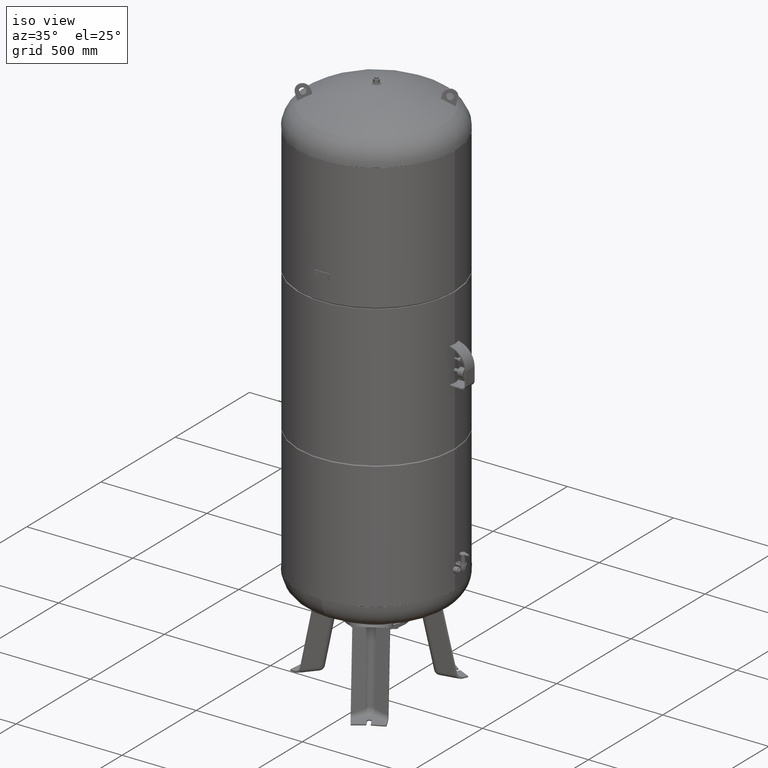
[diagram: clean part render]
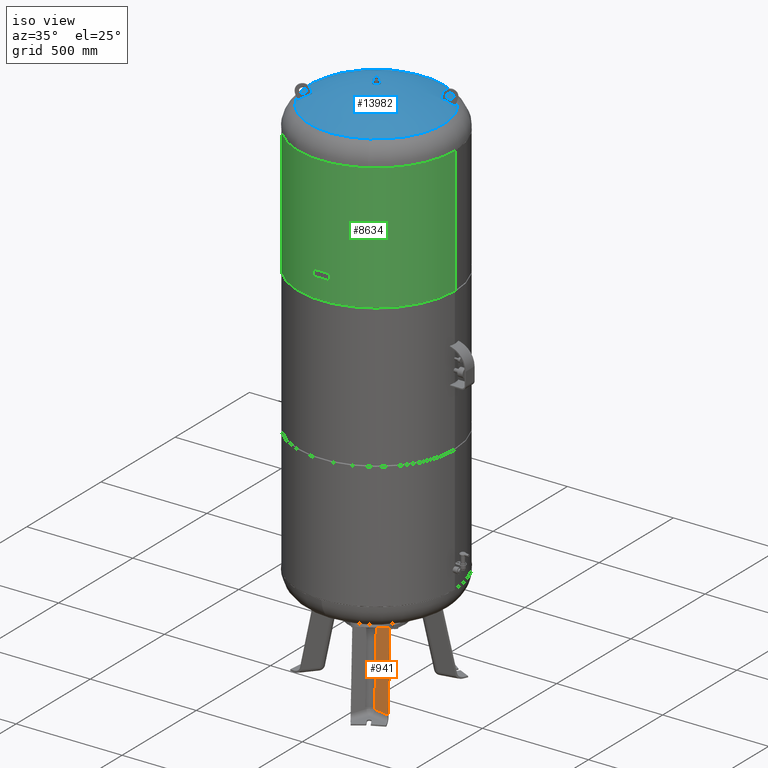
[diagram: same view with three faces highlighted in distinct colors, each labeled with its STEP entity id]
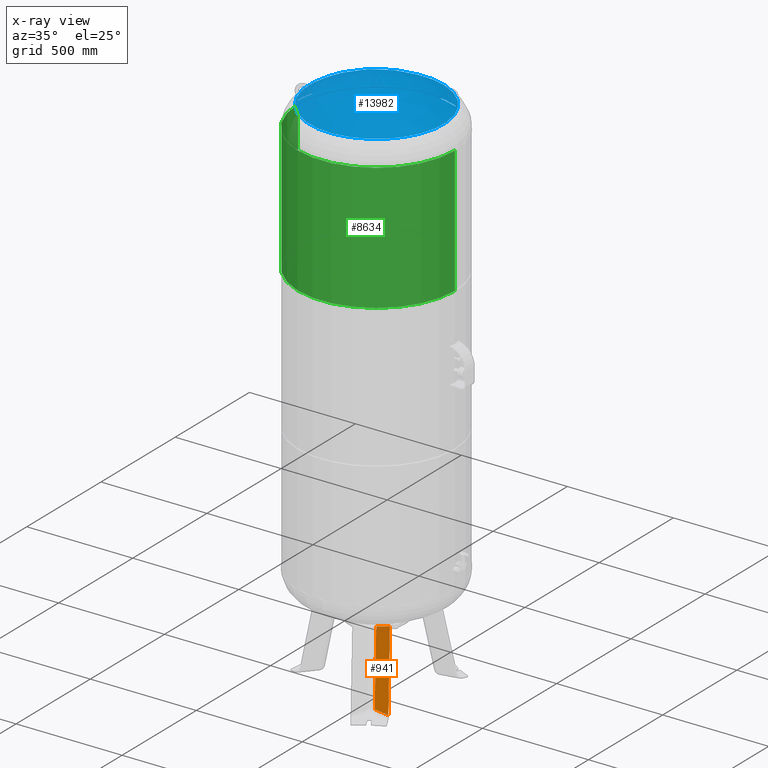
[diagram: x-ray of the same camera — body ghosted, the three highlighted faces saturated]
A machine part, iso view with three faces highlighted in distinct colors.
The next image is the same camera in x-ray (body ghosted, the three faces saturated) — at least one of them is partly hidden behind the body in this view.
Their STEP definitions:

[orange] entity #941 — the highlighted planar face has unit normal (-0.1854, -0.9697, 0.1588).
#242=CARTESIAN_POINT('',(110.332412913938650,-158.828443235501310,348.869175182353330));
#243=VERTEX_POINT('',#242);
#261=CARTESIAN_POINT('',(181.412613696192100,-168.540131715960290,372.562952014676110));
#262=VERTEX_POINT('',#261);
#263=CARTESIAN_POINT('',(181.412613696192100,-168.540131715960290,372.562952014676110));
#264=CARTESIAN_POINT('',(167.154454540864040,-166.704599258965570,367.122797962066330));
#265=CARTESIAN_POINT('',(152.866619821244340,-164.800008526659550,362.069703598062520));
#266=CARTESIAN_POINT('',(131.328084243318190,-161.824675071974980,355.088683497571820));
#267=CARTESIAN_POINT('',(124.047105973480560,-160.800721286569000,352.839681936075920));
#268=CARTESIAN_POINT('',(114.632281824840530,-159.450541506074560,350.091155577606000));
#269=CARTESIAN_POINT('',(112.481491377469150,-159.140308945746140,349.474179354457020));
#270=CARTESIAN_POINT('',(110.332412913938650,-158.828443235501310,348.869175182353330));
#271=B_SPLINE_CURVE_WITH_KNOTS('',3,(#263,#264,#265,#266,#267,#268,#269,#270),.UNSPECIFIED.,.F.,.U.,(4,2,2,4),(536.144034177567730,540.433260676197730,542.629325785795340,543.280185670864850),.UNSPECIFIED.);
#272=EDGE_CURVE('',#262,#243,#271,.T.);
#594=CARTESIAN_POINT('',(144.536932639186010,-218.072409248121570,27.029948423057284));
#595=VERTEX_POINT('',#594);
#604=CARTESIAN_POINT('',(218.135267289667210,-232.145633528611060,27.029948423057281));
#605=VERTEX_POINT('',#604);
#613=CARTESIAN_POINT('',(218.135267289667210,-232.145633528611060,27.029948423057281));
#614=DIRECTION('',(-0.982204642422582,0.187813845079450,4.741265E-017));
#615=VECTOR('',#614,74.931772333057637);
#616=LINE('',#613,#615);
#617=EDGE_CURVE('',#605,#595,#616,.T.);
#861=CARTESIAN_POINT('',(218.135267289667210,-232.145633528611060,27.029948423057281));
#862=DIRECTION('',(-0.103955845408880,0.180056805991956,0.978147600733805));
#863=VECTOR('',#862,353.252416437355920);
#864=LINE('',#861,#863);
#865=EDGE_CURVE('',#605,#262,#864,.T.);
#925=CARTESIAN_POINT('',(228.206754317925000,-249.589960769324450,-67.735293817669458));
#926=DIRECTION('',(-0.185430570007245,-0.969740897595359,0.158802063077709));
#927=DIRECTION('',(-0.103955845408880,0.180056805991956,0.978147600733806));
#928=AXIS2_PLACEMENT_3D('',#925,#926,#927);
#929=PLANE('',#928);
#930=ORIENTED_EDGE('',*,*,#865,.T.);
#931=ORIENTED_EDGE('',*,*,#272,.T.);
#932=CARTESIAN_POINT('',(144.536932639186010,-218.072409248121570,27.029948423057284));
#933=DIRECTION('',(-0.103955845408880,0.180056805991956,0.978147600733806));
#934=VECTOR('',#933,329.029306535999750);
#935=LINE('',#932,#934);
#936=EDGE_CURVE('',#595,#243,#935,.T.);
#937=ORIENTED_EDGE('',*,*,#936,.F.);
#938=ORIENTED_EDGE('',*,*,#617,.F.);
#939=EDGE_LOOP('',(#930,#931,#937,#938));
#940=FACE_OUTER_BOUND('',#939,.T.);
#941=ADVANCED_FACE('',(#940),#929,.T.);

[blue] entity #13982 — the highlighted spherical surface has radius 594 mm.
#13351=CARTESIAN_POINT('',(157.965517241379270,-273.604301705966460,2484.014494274920300));
#13352=VERTEX_POINT('',#13351);
#13368=CARTESIAN_POINT('',(-157.965517241379250,273.604301705966410,2484.014494274920300));
#13369=VERTEX_POINT('',#13368);
#13377=CARTESIAN_POINT('',(273.604301705966460,157.965517241379250,2484.014494274920300));
#13378=VERTEX_POINT('',#13377);
#13379=CARTESIAN_POINT('',(-1.292814E-015,-2.004580E-014,2484.014494274920300));
#13380=DIRECTION('',(-1.060575E-016,-6.123234E-017,-1.0));
#13381=DIRECTION('',(0.866025403784439,0.500000000000000,-1.224647E-016));
#13382=AXIS2_PLACEMENT_3D('',#13379,#13380,#13381);
#13383=CIRCLE('',#13382,315.931034482758610);
#13384=EDGE_CURVE('',#13369,#13378,#13383,.T.);
#13386=CARTESIAN_POINT('',(-1.292814E-015,-2.004580E-014,2484.014494274920300));
#13387=DIRECTION('',(-1.060575E-016,-6.123234E-017,-1.0));
#13388=DIRECTION('',(0.866025403784439,0.500000000000000,-1.224647E-016));
#13389=AXIS2_PLACEMENT_3D('',#13386,#13387,#13388);
#13390=CIRCLE('',#13389,315.931034482758610);
#13391=EDGE_CURVE('',#13378,#13352,#13390,.T.);
#13527=CARTESIAN_POINT('',(215.032738994050080,127.613311357928240,2519.805868495306200));
#13528=VERTEX_POINT('',#13527);
#13529=CARTESIAN_POINT('',(264.376557238610250,156.101978104269390,2489.500942393024600));
#13530=VERTEX_POINT('',#13529);
#13531=CARTESIAN_POINT('',(-1.499999999995883,2.598076211345996,1981.0));
#13532=DIRECTION('',(-0.500000000000006,0.866025403784435,0.0));
#13533=DIRECTION('',(0.0,0.0,1.0));
#13534=AXIS2_PLACEMENT_3D('',#13531,#13532,#13533);
#13535=CIRCLE('',#13534,593.992424194113820);
#13536=EDGE_CURVE('',#13528,#13530,#13535,.T.);
#13579=CARTESIAN_POINT('',(218.032738994050020,122.417158935221560,2519.805868495306200));
#13580=VERTEX_POINT('',#13579);
#13581=CARTESIAN_POINT('',(81.041876268855148,46.789549079456478,1955.075117590819000));
#13582=DIRECTION('',(-0.834590199910595,-0.481850876581413,0.266981143436978));
#13583=DIRECTION('',(-0.231212452547840,-0.133490571718489,-0.963701753162815));
#13584=AXIS2_PLACEMENT_3D('',#13581,#13582,#13583);
#13585=CIRCLE('',#13584,586.009260046148940);
#13586=EDGE_CURVE('',#13580,#13528,#13585,.T.);
#13650=CARTESIAN_POINT('',(267.376557238610190,150.905825681562790,2489.500942393024600));
#13651=VERTEX_POINT('',#13650);
#13652=CARTESIAN_POINT('',(133.621058863222740,77.146154304085570,1938.255305554289400));
#13653=DIRECTION('',(0.834590199910595,0.481850876581413,-0.266981143436978));
#13654=DIRECTION('',(0.231212452547840,0.133490571718489,0.963701753162815));
#13655=AXIS2_PLACEMENT_3D('',#13652,#13653,#13654);
#13656=CIRCLE('',#13655,572.016411129177530);
#13657=EDGE_CURVE('',#13530,#13651,#13656,.T.);
#13721=CARTESIAN_POINT('',(1.500000000004162,-2.598076211360627,1981.0));
#13722=DIRECTION('',(0.500000000000006,-0.866025403784435,0.0));
#13723=DIRECTION('',(0.0,0.0,-1.0));
#13724=AXIS2_PLACEMENT_3D('',#13721,#13722,#13723);
#13725=CIRCLE('',#13724,593.992424194113710);
#13726=EDGE_CURVE('',#13651,#13580,#13725,.T.);
#13743=CARTESIAN_POINT('',(-215.032738994045760,-127.613311357935440,2519.805868495306200));
#13744=VERTEX_POINT('',#13743);
#13745=CARTESIAN_POINT('',(-264.376557238605870,-156.101978104276610,2489.500942393024600));
#13746=VERTEX_POINT('',#13745);
#13747=CARTESIAN_POINT('',(1.499999999999974,-2.598076211353372,1981.0));
#13748=DIRECTION('',(0.500000000000006,-0.866025403784435,0.0));
#13749=DIRECTION('',(0.0,0.0,-1.0));
#13750=AXIS2_PLACEMENT_3D('',#13747,#13748,#13749);
#13751=CIRCLE('',#13750,593.992424194113820);
#13752=EDGE_CURVE('',#13744,#13746,#13751,.T.);
#13795=CARTESIAN_POINT('',(-218.032738994045790,-122.417158935228780,2519.805868495306200));
#13796=VERTEX_POINT('',#13795);
#13797=CARTESIAN_POINT('',(-81.041876268855106,-46.789549079456712,1955.075117590819000));
#13798=DIRECTION('',(0.834590199910595,0.481850876581413,0.266981143436977));
#13799=DIRECTION('',(-0.231212452547839,-0.133490571718489,0.963701753162815));
#13800=AXIS2_PLACEMENT_3D('',#13797,#13798,#13799);
#13801=CIRCLE('',#13800,586.009260046148940);
#13802=EDGE_CURVE('',#13796,#13744,#13801,.T.);
#13866=CARTESIAN_POINT('',(-267.376557238605810,-150.905825681569980,2489.500942393024600));
#13867=VERTEX_POINT('',#13866);
#13868=CARTESIAN_POINT('',(-133.621058863222710,-77.146154304085812,1938.255305554289400));
#13869=DIRECTION('',(-0.834590199910595,-0.481850876581413,-0.266981143436977));
#13870=DIRECTION('',(0.231212452547839,0.133490571718489,-0.963701753162815));
#13871=AXIS2_PLACEMENT_3D('',#13868,#13869,#13870);
#13872=CIRCLE('',#13871,572.016411129177530);
#13873=EDGE_CURVE('',#13746,#13867,#13872,.T.);
#13937=CARTESIAN_POINT('',(-1.500000000000086,2.598076211353275,1981.0));
#13938=DIRECTION('',(-0.500000000000006,0.866025403784435,0.0));
#13939=DIRECTION('',(0.0,0.0,1.0));
#13940=AXIS2_PLACEMENT_3D('',#13937,#13938,#13939);
#13941=CIRCLE('',#13940,593.992424194113820);
#13942=EDGE_CURVE('',#13867,#13796,#13941,.T.);
#13954=CARTESIAN_POINT('',(-8.440154E-015,-1.308693E-013,1981.0));
#13955=DIRECTION('',(0.500000000000000,-0.866025403784439,1.836970E-016));
#13956=DIRECTION('',(-0.866025403784439,-0.500000000000000,1.224647E-016));
#13957=AXIS2_PLACEMENT_3D('',#13954,#13955,#13956);
#13958=SPHERICAL_SURFACE('',#13957,594.0);
#13959=ORIENTED_EDGE('',*,*,#13586,.T.);
#13960=ORIENTED_EDGE('',*,*,#13536,.T.);
#13961=ORIENTED_EDGE('',*,*,#13657,.T.);
#13962=ORIENTED_EDGE('',*,*,#13726,.T.);
#13963=EDGE_LOOP('',(#13959,#13960,#13961,#13962));
#13964=FACE_OUTER_BOUND('',#13963,.T.);
#13965=ORIENTED_EDGE('',*,*,#13802,.T.);
#13966=ORIENTED_EDGE('',*,*,#13752,.T.);
#13967=ORIENTED_EDGE('',*,*,#13873,.T.);
#13968=ORIENTED_EDGE('',*,*,#13942,.T.);
#13969=EDGE_LOOP('',(#13965,#13966,#13967,#13968));
#13970=FACE_BOUND('',#13969,.T.);
#13971=ORIENTED_EDGE('',*,*,#13391,.F.);
#13972=ORIENTED_EDGE('',*,*,#13384,.F.);
#13973=CARTESIAN_POINT('',(-1.292814E-015,-2.004580E-014,2484.014494274920300));
#13974=DIRECTION('',(-1.060575E-016,-6.123234E-017,-1.0));
#13975=DIRECTION('',(0.866025403784439,0.500000000000000,-1.224647E-016));
#13976=AXIS2_PLACEMENT_3D('',#13973,#13974,#13975);
#13977=CIRCLE('',#13976,315.931034482758610);
#13978=EDGE_CURVE('',#13352,#13369,#13977,.T.);
#13979=ORIENTED_EDGE('',*,*,#13978,.F.);
#13980=EDGE_LOOP('',(#13971,#13972,#13979));
#13981=FACE_BOUND('',#13980,.T.);
#13982=ADVANCED_FACE('',(#13964,#13970,#13981),#13958,.T.);

[green] entity #8634 — the highlighted cylindrical surface (partial cylindrical patch) has radius 370 mm, axis along (0, 0, 1).
#8482=CARTESIAN_POINT('',(369.999999999999490,0.0,1788.666666666666700));
#8483=VERTEX_POINT('',#8482);
#8492=CARTESIAN_POINT('',(-369.999999999999720,-4.531044E-014,1788.666666666666700));
#8493=VERTEX_POINT('',#8492);
#8494=CARTESIAN_POINT('',(5.646011E-015,0.0,1788.666666666666700));
#8495=DIRECTION('',(0.0,0.0,1.0));
#8496=DIRECTION('',(1.0,0.0,0.0));
#8497=AXIS2_PLACEMENT_3D('',#8494,#8495,#8496);
#8498=CIRCLE('',#8497,369.999999999999490);
#8499=EDGE_CURVE('',#8493,#8483,#8498,.T.);
#8603=CARTESIAN_POINT('',(1.116699E-014,0.0,2119.833333333333500));
#8604=DIRECTION('',(1.667129E-017,0.0,1.0));
#8605=DIRECTION('',(1.0,0.0,0.0));
#8606=AXIS2_PLACEMENT_3D('',#8603,#8604,#8605);
#8607=CYLINDRICAL_SURFACE('',#8606,369.999999999999720);
#8608=CARTESIAN_POINT('',(369.999999999999720,0.0,2386.0));
#8609=VERTEX_POINT('',#8608);
#8610=CARTESIAN_POINT('',(369.999999999999720,0.0,2386.0));
#8611=DIRECTION('',(0.0,0.0,-1.0));
#8612=VECTOR('',#8611,597.333333333333260);
#8613=LINE('',#8610,#8612);
#8614=EDGE_CURVE('',#8609,#8483,#8613,.T.);
#8615=ORIENTED_EDGE('',*,*,#8614,.F.);
#8616=CARTESIAN_POINT('',(-369.999999999999720,-4.531044E-014,2386.0));
#8617=VERTEX_POINT('',#8616);
#8618=CARTESIAN_POINT('',(1.560433E-014,0.0,2386.0));
#8619=DIRECTION('',(0.0,0.0,1.0));
#8620=DIRECTION('',(1.0,0.0,0.0));
#8621=AXIS2_PLACEMENT_3D('',#8618,#8619,#8620);
#8622=CIRCLE('',#8621,369.999999999999720);
#8623=EDGE_CURVE('',#8617,#8609,#8622,.T.);
#8624=ORIENTED_EDGE('',*,*,#8623,.F.);
#8625=CARTESIAN_POINT('',(-369.999999999999720,-4.531044E-014,2386.0));
#8626=DIRECTION('',(0.0,0.0,-1.0));
#8627=VECTOR('',#8626,597.333333333333260);
#8628=LINE('',#8625,#8627);
#8629=EDGE_CURVE('',#8617,#8493,#8628,.T.);
#8630=ORIENTED_EDGE('',*,*,#8629,.T.);
#8631=ORIENTED_EDGE('',*,*,#8499,.T.);
#8632=EDGE_LOOP('',(#8615,#8624,#8630,#8631));
#8633=FACE_OUTER_BOUND('',#8632,.T.);
#8634=ADVANCED_FACE('',(#8633),#8607,.T.);